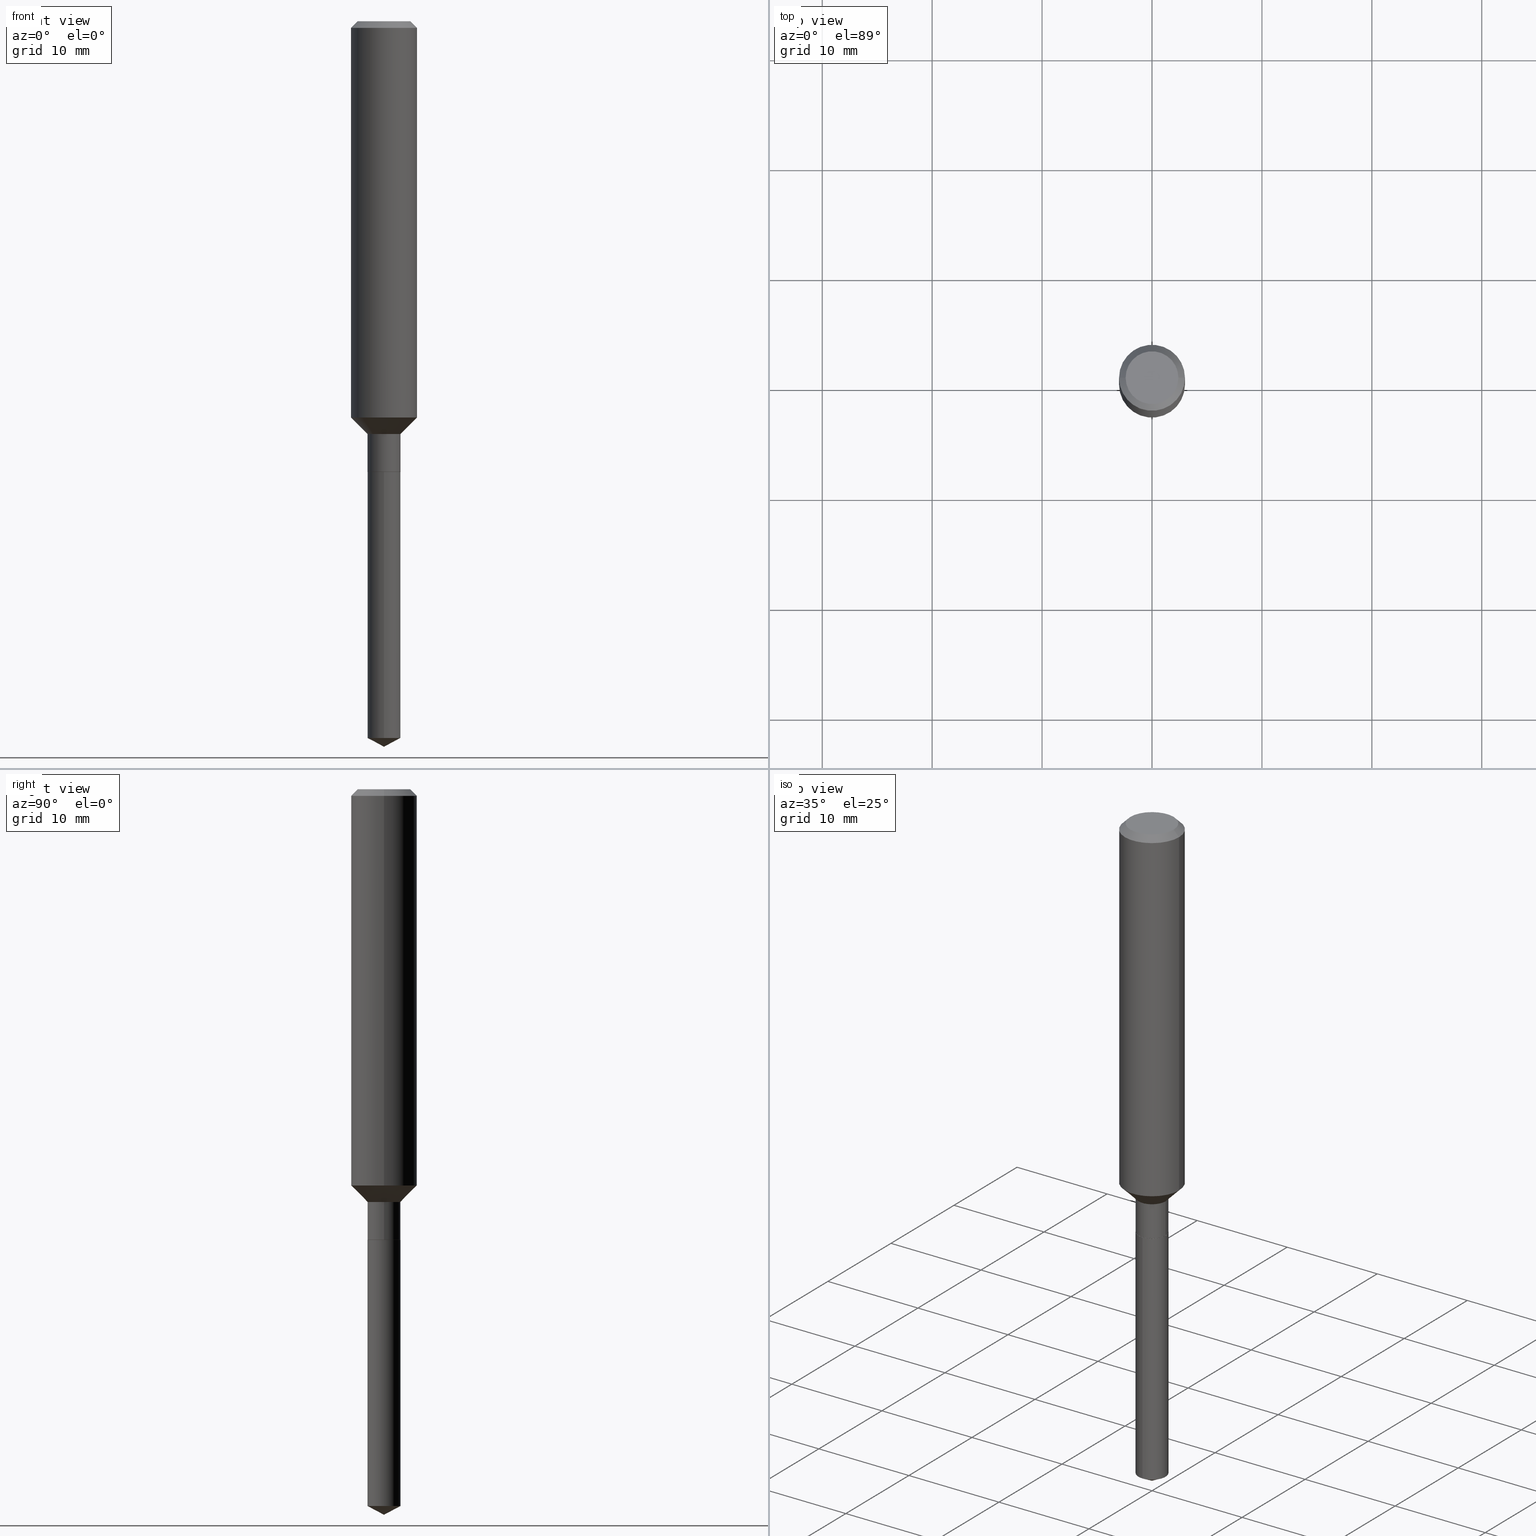
[diagram: canonical four-view strip — front | top / right | iso, engineering-drawing reading convention]
A machine part, canonical four-view strip (front | top / right | iso — engineering-drawing reading convention). The complete STEP part file that produces these views, byte-faithful:
ISO-10303-21;
HEADER;
FILE_DESCRIPTION (( 'STEP AP203' ),
    '1' );
FILE_NAME ('65160.STEP',
    '2024-04-24T20:45:48',
    ( '' ),
    ( '' ),
    'SwSTEP 2.0',
    'SolidWorks 2023',
    '' );
FILE_SCHEMA (( 'CONFIG_CONTROL_DESIGN' ));
ENDSEC;

DATA;
#1 = DIRECTION ( 'NONE',  ( 6.982962677686265922E-15, 1.000000000000000000, -3.499725534073182497E-15 ) ) ;
#2 = EDGE_LOOP ( 'NONE', ( #210, #271, #379, #392 ) ) ;
#3 = DIRECTION ( 'NONE',  ( -6.982962677686265922E-15, -1.000000000000000000, 4.626330217890370914E-15 ) ) ;
#4 = EDGE_LOOP ( 'NONE', ( #123, #307, #44, #301 ) ) ;
#5 = EDGE_CURVE ( 'NONE', #10, #429, #19, .T. ) ;
#6 = AXIS2_PLACEMENT_3D ( 'NONE', #293, #178, #486 ) ;
#7 = DIRECTION ( 'NONE',  ( 1.000000000000000000, -6.982962677686265922E-15, 0.000000000000000000 ) ) ;
#8 = ORIENTED_EDGE ( 'NONE', *, *, #366, .T. ) ;
#9 = CARTESIAN_POINT ( 'NONE',  ( 6.272038925202559547E-29, -8.970497442954319382E-15, -2.567002558060389461 ) ) ;
#10 = VERTEX_POINT ( 'NONE', #14 ) ;
#11 = DIRECTION ( 'NONE',  ( 1.000000000000000000, -6.982962677686265922E-15, 0.000000000000000000 ) ) ;
#12 = CARTESIAN_POINT ( 'NONE',  ( -0.1181000000000001354, -4.116133919220453348E-15, -1.419249999999999678 ) ) ;
#13 = AXIS2_PLACEMENT_3D ( 'NONE', #109, #185, #479 ) ;
#14 = CARTESIAN_POINT ( 'NONE',  ( -4.123439461173112196E-16, -0.05905000000000895644, -2.567002558060389461 ) ) ;
#15 = ADVANCED_FACE ( 'NONE', ( #169 ), #464, .T. ) ;
#16 = PERSON_AND_ORGANIZATION ( #471, #68 ) ;
#17 = ORIENTED_EDGE ( 'NONE', *, *, #366, .F. ) ;
#18 = PERSON_AND_ORGANIZATION_ROLE ( 'creator' ) ;
#19 = LINE ( 'NONE', #284, #180 ) ;
#20 = EDGE_CURVE ( 'NONE', #455, #10, #55, .T. ) ;
#21 = ORIENTED_EDGE ( 'NONE', *, *, #218, .F. ) ;
#22 = CIRCLE ( 'NONE', #13, 0.1180999999999999966 ) ;
#23 = DATE_AND_TIME ( #443, #297 ) ;
#24 = CARTESIAN_POINT ( 'NONE',  ( 4.195754854664020595E-16, 0.05904999999999435700, -1.614099999999999868 ) ) ;
#25 = DIRECTION ( 'NONE',  ( 1.000000000000000000, -6.982962677686258033E-15, 0.000000000000000000 ) ) ;
#26 = LINE ( 'NONE', #367, #334 ) ;
#27 = AXIS2_PLACEMENT_3D ( 'NONE', #274, #204, #431 ) ;
#28 = AXIS2_PLACEMENT_3D ( 'NONE', #131, #236, #472 ) ;
#29 = FACE_OUTER_BOUND ( 'NONE', #470, .T. ) ;
#30 = LINE ( 'NONE', #292, #344 ) ;
#31 = ADVANCED_FACE ( 'NONE', ( #311 ), #134, .T. ) ;
#32 = CARTESIAN_POINT ( 'NONE',  ( 3.947231200063428045E-29, -5.635600029026720279E-15, -1.614099999999999646 ) ) ;
#33 = ORIENTED_EDGE ( 'NONE', *, *, #167, .T. ) ;
#34 = AXIS2_PLACEMENT_3D ( 'NONE', #189, #419, #450 ) ;
#35 = FACE_OUTER_BOUND ( 'NONE', #309, .T. ) ;
#36 = ORIENTED_EDGE ( 'NONE', *, *, #20, .T. ) ;
#37 = LINE ( 'NONE', #340, #304 ) ;
#38 = VERTEX_POINT ( 'NONE', #12 ) ;
#39 = EDGE_CURVE ( 'NONE', #463, #303, #237, .T. ) ;
#40 = DIRECTION ( 'NONE',  ( -2.438088387897960049E-29, 3.491481338843145188E-15, 1.000000000000000000 ) ) ;
#41 = EDGE_LOOP ( 'NONE', ( #420, #245 ) ) ;
#42 = CIRCLE ( 'NONE', #73, 0.05904999999999998445 ) ;
#43 = DIRECTION ( 'NONE',  ( 1.000000000000000000, -6.982962677686265922E-15, 0.000000000000000000 ) ) ;
#44 = ORIENTED_EDGE ( 'NONE', *, *, #5, .T. ) ;
#45 =( NAMED_UNIT ( * ) PLANE_ANGLE_UNIT ( ) SI_UNIT ( $, .RADIAN. ) );
#46 = DIRECTION ( 'NONE',  ( -2.445468806185136877E-29, 3.491481338843145188E-15, 1.000000000000000000 ) ) ;
#47 = CARTESIAN_POINT ( 'NONE',  ( 6.339347441040957476E-29, -9.093686827735757233E-15, -2.598399999999999821 ) ) ;
#48 = ADVANCED_FACE ( 'NONE', ( #49 ), #480, .T. ) ;
#49 = FACE_OUTER_BOUND ( 'NONE', #207, .T. ) ;
#50 = CALENDAR_DATE ( 2024, 24, 4 ) ;
#51 = AXIS2_PLACEMENT_3D ( 'NONE', #477, #110, #175 ) ;
#52 = VERTEX_POINT ( 'NONE', #426 ) ;
#53 = CIRCLE ( 'NONE', #34, 0.05904999999999998445 ) ;
#54 = CARTESIAN_POINT ( 'NONE',  ( -0.05854999999999998400, -5.216928030065070484E-15, -1.614099999999999646 ) ) ;
#55 = LINE ( 'NONE', #320, #321 ) ;
#56 = CC_DESIGN_DATE_AND_TIME_ASSIGNMENT ( #291, #251, ( #78 ) ) ;
#57 = CARTESIAN_POINT ( 'NONE',  ( 4.716267017698007905E-46, -6.733579360998555036E-32, -1.928573779297252010E-17 ) ) ;
#58 = ORIENTED_EDGE ( 'NONE', *, *, #444, .F. ) ;
#59 = CARTESIAN_POINT ( 'NONE',  ( 3.946008465660335244E-29, -5.633854288357298776E-15, -1.613599999999999701 ) ) ;
#60 = VECTOR ( 'NONE', #315, 39.37007874015748854 ) ;
#61 = CONICAL_SURFACE ( 'NONE', #441, 0.05854999999999998400, 0.7853981633974482790 ) ;
#62 = CARTESIAN_POINT ( 'NONE',  ( 0.09447999999999998066, -7.704367267948738690E-16, -1.928573779296752193E-17 ) ) ;
#63 = CARTESIAN_POINT ( 'NONE',  ( 0.1181000000000000660, -8.246878922347485584E-16, 5.758764772215003944E-30 ) ) ;
#64 = EDGE_CURVE ( 'NONE', #415, #52, #155, .T. ) ;
#65 = DIRECTION ( 'NONE',  ( 1.000000000000000000, -6.982962677686267499E-15, 4.876176775795935793E-29 ) ) ;
#66 = VECTOR ( 'NONE', #483, 39.37007874015748143 ) ;
#67 = DIRECTION ( 'NONE',  ( 0.7071067811865474617, -2.468850131082256666E-15, 0.7071067811865474617 ) ) ;
#68 = ORGANIZATION ( 'UNSPECIFIED', 'UNSPECIFIED', '' ) ;
#69 = EDGE_CURVE ( 'NONE', #429, #120, #42, .T. ) ;
#70 = DIRECTION ( 'NONE',  ( 0.7071067811865491270, -2.468850131082274021E-15, 0.7071067811865459074 ) ) ;
#71 = CARTESIAN_POINT ( 'NONE',  ( 3.947231200063428045E-29, -5.635600029026720279E-15, -1.614099999999999646 ) ) ;
#72 = ORIENTED_EDGE ( 'NONE', *, *, #361, .T. ) ;
#73 = AXIS2_PLACEMENT_3D ( 'NONE', #241, #352, #317 ) ;
#74 = AXIS2_PLACEMENT_3D ( 'NONE', #229, #153, #1 ) ;
#75 = CYLINDRICAL_SURFACE ( 'NONE', #203, 0.05904999999999998445 ) ;
#76 = EDGE_CURVE ( 'NONE', #455, #299, #202, .T. ) ;
#77 = ORIENTED_EDGE ( 'NONE', *, *, #182, .T. ) ;
#78 = SECURITY_CLASSIFICATION ( '', '', #97 ) ;
#79 = MANIFOLD_SOLID_BREP ( 'Body-Move/Copy2[1]', #100 ) ;
#80 = DIRECTION ( 'NONE',  ( -0.7071067811865491270, 7.493145998870360471E-15, 0.7071067811865459074 ) ) ;
#81 = ORIENTED_EDGE ( 'NONE', *, *, #354, .F. ) ;
#82 = DIRECTION ( 'NONE',  ( 1.000000000000000000, -6.982962677686270655E-15, 0.000000000000000000 ) ) ;
#83 = ORIENTED_EDGE ( 'NONE', *, *, #460, .T. ) ;
#84 = CLOSED_SHELL ( 'NONE', ( #468, #347, #15, #145, #88, #160, #258, #31, #282, #197, #339, #375 ) ) ;
#85 = CONICAL_SURFACE ( 'NONE', #358, 0.05854999999999998400, 0.7853981633974482790 ) ;
#86 = DIRECTION ( 'NONE',  ( 1.000000000000000000, -6.982962677686266711E-15, 0.000000000000000000 ) ) ;
#87 = DIRECTION ( 'NONE',  ( -2.445468806185136597E-29, 3.491481338843145583E-15, 1.000000000000000000 ) ) ;
#88 = ADVANCED_FACE ( 'NONE', ( #93 ), #360, .T. ) ;
#89 = DIRECTION ( 'NONE',  ( 1.000000000000000000, -6.982962677686267499E-15, 4.875432709231658792E-29 ) ) ;
#90 = DIRECTION ( 'NONE',  ( 1.000000000000000000, -6.982962677686265922E-15, 0.000000000000000000 ) ) ;
#91 = DIRECTION ( 'NONE',  ( -2.445468806185136597E-29, 3.491481338843145583E-15, 1.000000000000000000 ) ) ;
#92 = EDGE_LOOP ( 'NONE', ( #154, #116, #149, #385 ) ) ;
#93 = FACE_OUTER_BOUND ( 'NONE', #267, .T. ) ;
#94 = CIRCLE ( 'NONE', #487, 0.1180999999999999966 ) ;
#95 = EDGE_CURVE ( 'NONE', #346, #303, #448, .T. ) ;
#96 = ORIENTED_EDGE ( 'NONE', *, *, #76, .F. ) ;
#97 = SECURITY_CLASSIFICATION_LEVEL ( 'unclassified' ) ;
#98 = CYLINDRICAL_SURFACE ( 'NONE', #474, 0.05904999999999998445 ) ;
#99 = LINE ( 'NONE', #359, #411 ) ;
#100 = CLOSED_SHELL ( 'NONE', ( #296, #266, #48, #233, #332 ) ) ;
#101 = CIRCLE ( 'NONE', #481, 0.1181000000000001354 ) ;
#102 = VERTEX_POINT ( 'NONE', #62 ) ;
#103 = CC_DESIGN_APPROVAL ( #437, ( #125 ) ) ;
#104 = EDGE_CURVE ( 'NONE', #102, #129, #99, .T. ) ;
#105 = DATE_AND_TIME ( #249, #416 ) ;
#106 = CC_DESIGN_APPROVAL ( #240, ( #78 ) ) ;
#107 = DIRECTION ( 'NONE',  ( 1.000000000000000000, -6.982962677686270655E-15, 0.000000000000000000 ) ) ;
#108 = COORDINATED_UNIVERSAL_TIME_OFFSET ( 5, 0, .BEHIND. ) ;
#109 = CARTESIAN_POINT ( 'NONE',  ( 5.776197320209328408E-31, -8.246878922347560526E-17, -0.02362000000000014435 ) ) ;
#110 = DIRECTION ( 'NONE',  ( -2.445468806185136597E-29, 3.491481338843145583E-15, 1.000000000000000000 ) ) ;
#111 = CARTESIAN_POINT ( 'NONE',  ( 5.776197320209328408E-31, -8.246878922347560526E-17, -0.02362000000000014435 ) ) ;
#112 = CC_DESIGN_APPROVAL ( #476, ( #316 ) ) ;
#113 = FACE_OUTER_BOUND ( 'NONE', #92, .T. ) ;
#114 = ORIENTED_EDGE ( 'NONE', *, *, #453, .T. ) ;
#115 = DIRECTION ( 'NONE',  ( -1.000000000000000000, 6.982962677686266711E-15, 0.000000000000000000 ) ) ;
#116 = ORIENTED_EDGE ( 'NONE', *, *, #224, .T. ) ;
#117 = VECTOR ( 'NONE', #67, 39.37007874015748854 ) ;
#118 = AXIS2_PLACEMENT_3D ( 'NONE', #157, #122, #82 ) ;
#119 = FACE_OUTER_BOUND ( 'NONE', #41, .T. ) ;
#120 = VERTEX_POINT ( 'NONE', #24 ) ;
#121 = LOCAL_TIME ( 16, 45, 48.00000000000000000, #170 ) ;
#122 = DIRECTION ( 'NONE',  ( -2.445468806185136597E-29, 3.491481338843145583E-15, 1.000000000000000000 ) ) ;
#123 = ORIENTED_EDGE ( 'NONE', *, *, #224, .F. ) ;
#124 = ORIENTED_EDGE ( 'NONE', *, *, #247, .F. ) ;
#125 = PRODUCT_DEFINITION ( 'UNKNOWN', '', #316, #208 ) ;
#126 = AXIS2_PLACEMENT_3D ( 'NONE', #135, #200, #279 ) ;
#127 = CIRCLE ( 'NONE', #351, 0.05904999999999999138 ) ;
#128 = DIRECTION ( 'NONE',  ( 0.000000000000000000, 0.000000000000000000, 1.000000000000000000 ) ) ;
#129 = VERTEX_POINT ( 'NONE', #436 ) ;
#130 = ORIENTED_EDGE ( 'NONE', *, *, #95, .T. ) ;
#131 = CARTESIAN_POINT ( 'NONE',  ( 3.615136536183486392E-29, -5.161456863211820978E-15, -1.478299999999999725 ) ) ;
#132 = DIRECTION ( 'NONE',  ( 1.000000000000000000, -6.982962677686266711E-15, 4.876176775795936353E-29 ) ) ;
#133 = CARTESIAN_POINT ( 'NONE',  ( 0.000000000000000000, 0.000000000000000000, 0.000000000000000000 ) ) ;
#134 = CYLINDRICAL_SURFACE ( 'NONE', #173, 0.1181000000000000660 ) ;
#135 = CARTESIAN_POINT ( 'NONE',  ( 0.000000000000000000, 0.000000000000000000, 0.000000000000000000 ) ) ;
#136 = APPLICATION_CONTEXT ( 'configuration controlled 3d designs of mechanical parts and assemblies' ) ;
#137 = DIRECTION ( 'NONE',  ( -2.445468806185136877E-29, 3.491481338843145188E-15, 1.000000000000000000 ) ) ;
#138 = EDGE_CURVE ( 'NONE', #38, #343, #26, .T. ) ;
#139 = FACE_OUTER_BOUND ( 'NONE', #4, .T. ) ;
#140 = VECTOR ( 'NONE', #70, 39.37007874015748143 ) ;
#141 =( GEOMETRIC_REPRESENTATION_CONTEXT ( 3 ) GLOBAL_UNCERTAINTY_ASSIGNED_CONTEXT ( ( #353 ) ) GLOBAL_UNIT_ASSIGNED_CONTEXT ( ( #425, #45, #165 ) ) REPRESENTATION_CONTEXT ( 'NONE', 'WORKASPACE' ) );
#142 = APPROVAL_DATE_TIME ( #23, #240 ) ;
#143 = FACE_OUTER_BOUND ( 'NONE', #410, .T. ) ;
#144 = SHAPE_DEFINITION_REPRESENTATION ( #242, #428 ) ;
#145 = ADVANCED_FACE ( 'NONE', ( #29 ), #227, .T. ) ;
#146 = CARTESIAN_POINT ( 'NONE',  ( 2.358133508849003952E-46, -3.366789680499277518E-32, -9.642868896486260050E-18 ) ) ;
#147 = CARTESIAN_POINT ( 'NONE',  ( 4.195754854663784430E-16, 0.05904999999999435006, -1.614099999999999868 ) ) ;
#148 = DIRECTION ( 'NONE',  ( 2.445468806185136597E-29, -3.491481338843145583E-15, -1.000000000000000000 ) ) ;
#149 = ORIENTED_EDGE ( 'NONE', *, *, #69, .F. ) ;
#150 = DIRECTION ( 'NONE',  ( 1.000000000000000000, -6.982962677686258033E-15, 0.000000000000000000 ) ) ;
#151 = ORIENTED_EDGE ( 'NONE', *, *, #275, .T. ) ;
#152 = EDGE_CURVE ( 'NONE', #129, #343, #22, .T. ) ;
#153 = DIRECTION ( 'NONE',  ( 2.439711915425245520E-29, -3.499725534073182497E-15, -1.000000000000000000 ) ) ;
#154 = ORIENTED_EDGE ( 'NONE', *, *, #218, .T. ) ;
#155 = CIRCLE ( 'NONE', #164, 0.05854999999999998400 ) ;
#156 = AXIS2_PLACEMENT_3D ( 'NONE', #192, #373, #150 ) ;
#157 = CARTESIAN_POINT ( 'NONE',  ( 3.946008465660335244E-29, -5.633854288357298776E-15, -1.613599999999999701 ) ) ;
#158 = EDGE_LOOP ( 'NONE', ( #83, #190 ) ) ;
#159 = DATE_TIME_ROLE ( 'creation_date' ) ;
#160 = ADVANCED_FACE ( 'NONE', ( #403 ), #217, .T. ) ;
#161 = ORIENTED_EDGE ( 'NONE', *, *, #138, .F. ) ;
#162 = LENGTH_MEASURE_WITH_UNIT ( LENGTH_MEASURE( 0.02539999999999999897 ), #382 );
#163 = ORIENTED_EDGE ( 'NONE', *, *, #104, .T. ) ;
#164 = AXIS2_PLACEMENT_3D ( 'NONE', #281, #435, #90 ) ;
#165 =( NAMED_UNIT ( * ) SI_UNIT ( $, .STERADIAN. ) SOLID_ANGLE_UNIT ( ) );
#166 = CARTESIAN_POINT ( 'NONE',  ( 6.358094798996886766E-29, -9.067072916694150087E-15, -2.598399999999999821 ) ) ;
#167 = EDGE_CURVE ( 'NONE', #336, #346, #365, .T. ) ;
#168 = CALENDAR_DATE ( 2024, 24, 4 ) ;
#169 = FACE_OUTER_BOUND ( 'NONE', #369, .T. ) ;
#170 = COORDINATED_UNIVERSAL_TIME_OFFSET ( 5, 0, .BEHIND. ) ;
#171 = ORIENTED_EDGE ( 'NONE', *, *, #152, .F. ) ;
#172 = COORDINATED_UNIVERSAL_TIME_OFFSET ( 5, 0, .BEHIND. ) ;
#173 = AXIS2_PLACEMENT_3D ( 'NONE', #277, #87, #132 ) ;
#174 = ORIENTED_EDGE ( 'NONE', *, *, #388, .T. ) ;
#175 = DIRECTION ( 'NONE',  ( 1.000000000000000000, -6.982962677686258033E-15, 0.000000000000000000 ) ) ;
#176 = CC_DESIGN_PERSON_AND_ORGANIZATION_ASSIGNMENT ( #273, #356, ( #467 ) ) ;
#177 = PERSON_AND_ORGANIZATION ( #471, #68 ) ;
#178 = DIRECTION ( 'NONE',  ( -2.439711915425245800E-29, 3.499725534073182891E-15, 1.000000000000000000 ) ) ;
#179 = CARTESIAN_POINT ( 'NONE',  ( 3.947231200063428045E-29, -5.635600029026720279E-15, -1.614099999999999646 ) ) ;
#180 = VECTOR ( 'NONE', #475, 39.37007874015748143 ) ;
#181 = AXIS2_PLACEMENT_3D ( 'NONE', #59, #289, #107 ) ;
#182 = EDGE_CURVE ( 'NONE', #394, #38, #286, .T. ) ;
#183 = APPROVAL_PERSON_ORGANIZATION ( #276, #437, #270 ) ;
#184 = PERSON_AND_ORGANIZATION_ROLE ( 'classification_officer' ) ;
#185 = DIRECTION ( 'NONE',  ( -2.445468806185136597E-29, 3.491481338843145583E-15, 1.000000000000000000 ) ) ;
#186 = DIRECTION ( 'NONE',  ( 2.438088387897960049E-29, -3.491481338843145188E-15, -1.000000000000000000 ) ) ;
#187 = CARTESIAN_POINT ( 'NONE',  ( 4.195754854664017144E-16, 0.05904999999999101939, -2.567002558060389461 ) ) ;
#188 = ORIENTED_EDGE ( 'NONE', *, *, #95, .F. ) ;
#189 = CARTESIAN_POINT ( 'NONE',  ( 3.947231200063428045E-29, -5.635600029026720279E-15, -1.614099999999999646 ) ) ;
#190 = ORIENTED_EDGE ( 'NONE', *, *, #444, .T. ) ;
#191 = EDGE_CURVE ( 'NONE', #415, #463, #30, .T. ) ;
#192 = CARTESIAN_POINT ( 'NONE',  ( 3.615136536183486392E-29, -5.161456863211820978E-15, -1.478299999999999725 ) ) ;
#193 = ORIENTED_EDGE ( 'NONE', *, *, #252, .F. ) ;
#194 = CARTESIAN_POINT ( 'NONE',  ( 3.947231200063428045E-29, -5.635600029026720279E-15, -1.614099999999999646 ) ) ;
#195 = ORIENTED_EDGE ( 'NONE', *, *, #453, .F. ) ;
#196 = CIRCLE ( 'NONE', #181, 0.05904999999999988036 ) ;
#197 = ADVANCED_FACE ( 'NONE', ( #407 ), #399, .F. ) ;
#198 = CARTESIAN_POINT ( 'NONE',  ( 0.1181000000000001354, -5.779972782387881386E-15, -1.419249999999999678 ) ) ;
#199 = ORIENTED_EDGE ( 'NONE', *, *, #421, .F. ) ;
#200 = DIRECTION ( 'NONE',  ( -2.445468806185136597E-29, 3.491481338843145583E-15, 1.000000000000000000 ) ) ;
#201 = DIRECTION ( 'NONE',  ( -2.445468806185136597E-29, 3.491481338843145583E-15, 1.000000000000000000 ) ) ;
#202 = LINE ( 'NONE', #166, #60 ) ;
#203 = AXIS2_PLACEMENT_3D ( 'NONE', #32, #261, #3 ) ;
#204 = DIRECTION ( 'NONE',  ( -2.439711915425245800E-29, 3.499725534073182891E-15, 1.000000000000000000 ) ) ;
#205 = EDGE_CURVE ( 'NONE', #52, #336, #401, .T. ) ;
#206 = DIRECTION ( 'NONE',  ( -2.445468806185136597E-29, 3.491481338843145583E-15, 1.000000000000000000 ) ) ;
#207 = EDGE_LOOP ( 'NONE', ( #96, #36, #372 ) ) ;
#208 = DESIGN_CONTEXT ( 'detailed design', #136, 'design' ) ;
#209 = DIRECTION ( 'NONE',  ( 1.000000000000000000, -6.982962677686267499E-15, 4.875432709231658792E-29 ) ) ;
#210 = ORIENTED_EDGE ( 'NONE', *, *, #191, .F. ) ;
#211 = PRODUCT_RELATED_PRODUCT_CATEGORY ( 'detail', '', ( #467 ) ) ;
#212 = PERSON_AND_ORGANIZATION_ROLE ( 'design_supplier' ) ;
#213 = VECTOR ( 'NONE', #409, 39.37007874015748143 ) ;
#214 = DIRECTION ( 'NONE',  ( -2.445468806185136597E-29, 3.491481338843145583E-15, 1.000000000000000000 ) ) ;
#215 = DIRECTION ( 'NONE',  ( -1.000000000000000000, 6.982962677686265922E-15, -4.876176775795935793E-29 ) ) ;
#216 = ORIENTED_EDGE ( 'NONE', *, *, #252, .T. ) ;
#217 = CYLINDRICAL_SURFACE ( 'NONE', #440, 0.05904999999999985955 ) ;
#218 = EDGE_CURVE ( 'NONE', #10, #299, #220, .T. ) ;
#219 = DIRECTION ( 'NONE',  ( 1.000000000000000000, -6.982962677686267499E-15, 4.876176775795935793E-29 ) ) ;
#220 = CIRCLE ( 'NONE', #6, 0.05904999999999999138 ) ;
#221 = DIRECTION ( 'NONE',  ( -2.445468806185136597E-29, 3.491481338843145583E-15, 1.000000000000000000 ) ) ;
#222 = CARTESIAN_POINT ( 'NONE',  ( -0.1180999999999999966, 7.422191030112725094E-16, -0.02362000000000014435 ) ) ;
#223 = VERTEX_POINT ( 'NONE', #447 ) ;
#224 = EDGE_CURVE ( 'NONE', #299, #120, #256, .T. ) ;
#225 = FACE_OUTER_BOUND ( 'NONE', #418, .T. ) ;
#226 = ORIENTED_EDGE ( 'NONE', *, *, #361, .F. ) ;
#227 = CONICAL_SURFACE ( 'NONE', #51, 0.05904999999999984567, 0.7853981633974506105 ) ;
#228 = CIRCLE ( 'NONE', #328, 0.05854999999999998400 ) ;
#229 = CARTESIAN_POINT ( 'NONE',  ( 3.947231200063428045E-29, -5.635600029026720279E-15, -1.614099999999999646 ) ) ;
#230 = ORIENTED_EDGE ( 'NONE', *, *, #152, .T. ) ;
#231 = LINE ( 'NONE', #222, #213 ) ;
#232 = ORIENTED_EDGE ( 'NONE', *, *, #182, .F. ) ;
#233 = ADVANCED_FACE ( 'NONE', ( #139 ), #98, .T. ) ;
#234 = DIRECTION ( 'NONE',  ( -2.445468806185136597E-29, 3.491481338843145583E-15, 1.000000000000000000 ) ) ;
#235 = ORIENTED_EDGE ( 'NONE', *, *, #138, .T. ) ;
#236 = DIRECTION ( 'NONE',  ( -2.445468806185136597E-29, 3.491481338843145583E-15, 1.000000000000000000 ) ) ;
#237 = LINE ( 'NONE', #383, #363 ) ;
#238 = CARTESIAN_POINT ( 'NONE',  ( 4.716267017698007905E-46, -6.733579360998555036E-32, -1.928573779297252010E-17 ) ) ;
#239 = ORIENTED_EDGE ( 'NONE', *, *, #460, .F. ) ;
#240 = APPROVAL ( #438, 'UNSPECIFIED' ) ;
#241 = CARTESIAN_POINT ( 'NONE',  ( 3.947231200063428045E-29, -5.635600029026720279E-15, -1.614099999999999646 ) ) ;
#242 = PRODUCT_DEFINITION_SHAPE ( 'NONE', 'NONE',  #125 ) ;
#243 = AXIS2_PLACEMENT_3D ( 'NONE', #454, #40, #265 ) ;
#244 = APPLICATION_PROTOCOL_DEFINITION ( 'international standard', 'config_control_design', 1994, #136 ) ;
#245 = ORIENTED_EDGE ( 'NONE', *, *, #64, .F. ) ;
#246 = ORIENTED_EDGE ( 'NONE', *, *, #421, .T. ) ;
#247 = EDGE_CURVE ( 'NONE', #336, #463, #196, .T. ) ;
#248 = DIRECTION ( 'NONE',  ( -2.439711915425245800E-29, 3.499725534073182891E-15, 1.000000000000000000 ) ) ;
#249 = CALENDAR_DATE ( 2024, 24, 4 ) ;
#250 = DIRECTION ( 'NONE',  ( 0.7071067811865459074, -7.319954787623251312E-15, -0.7071067811865492381 ) ) ;
#251 = DATE_TIME_ROLE ( 'classification_date' ) ;
#252 = EDGE_CURVE ( 'NONE', #394, #129, #253, .T. ) ;
#253 = LINE ( 'NONE', #63, #465 ) ;
#254 = CARTESIAN_POINT ( 'NONE',  ( 0.000000000000000000, 0.000000000000000000, 0.000000000000000000 ) ) ;
#255 = PERSON_AND_ORGANIZATION ( #471, #68 ) ;
#256 = LINE ( 'NONE', #147, #66 ) ;
#257 = CARTESIAN_POINT ( 'NONE',  ( 0.05904999999999988036, -6.046198234474672118E-15, -1.613599999999999701 ) ) ;
#258 = ADVANCED_FACE ( 'NONE', ( #143 ), #313, .T. ) ;
#259 = CARTESIAN_POINT ( 'NONE',  ( -0.05904999999999984567, -4.978080090318222356E-15, -1.478299999999999725 ) ) ;
#260 = ORIENTED_EDGE ( 'NONE', *, *, #205, .F. ) ;
#261 = DIRECTION ( 'NONE',  ( -2.439711915425245800E-29, 3.499725534073182891E-15, 1.000000000000000000 ) ) ;
#262 = ORIENTED_EDGE ( 'NONE', *, *, #247, .T. ) ;
#263 = CIRCLE ( 'NONE', #118, 0.05904999999999988036 ) ;
#264 = AXIS2_PLACEMENT_3D ( 'NONE', #133, #128, #310 ) ;
#265 = DIRECTION ( 'NONE',  ( 1.000000000000000000, -6.982962677686265922E-15, 4.876176775795935793E-29 ) ) ;
#266 = ADVANCED_FACE ( 'NONE', ( #225 ), #272, .T. ) ;
#267 = EDGE_LOOP ( 'NONE', ( #262, #348, #188, #452 ) ) ;
#268 = PLANE ( 'NONE',  #243 ) ;
#269 = ORIENTED_EDGE ( 'NONE', *, *, #354, .T. ) ;
#270 = APPROVAL_ROLE ( '' ) ;
#271 = ORIENTED_EDGE ( 'NONE', *, *, #64, .T. ) ;
#272 = CONICAL_SURFACE ( 'NONE', #457, 74.04434902938294272, 1.082104136236483161 ) ;
#273 = PERSON_AND_ORGANIZATION ( #471, #68 ) ;
#274 = CARTESIAN_POINT ( 'NONE',  ( -8.970301057517586129E-28, 1.287040899731859541E-13, 36.77167874015748339 ) ) ;
#275 = EDGE_CURVE ( 'NONE', #346, #394, #370, .T. ) ;
#276 = PERSON_AND_ORGANIZATION ( #471, #68 ) ;
#277 = CARTESIAN_POINT ( 'NONE',  ( 0.000000000000000000, 0.000000000000000000, 0.000000000000000000 ) ) ;
#278 = CARTESIAN_POINT ( 'NONE',  ( -0.05904999999999988036, -4.978080090318222356E-15, -1.613599999999999701 ) ) ;
#279 = DIRECTION ( 'NONE',  ( 1.000000000000000000, -6.982962677686266711E-15, 4.876176775795936353E-29 ) ) ;
#280 = DATE_AND_TIME ( #168, #121 ) ;
#281 = CARTESIAN_POINT ( 'NONE',  ( 3.947231200063428045E-29, -5.635600029026720279E-15, -1.614099999999999646 ) ) ;
#282 = ADVANCED_FACE ( 'NONE', ( #413 ), #449, .T. ) ;
#283 = COORDINATED_UNIVERSAL_TIME_OFFSET ( 5, 0, .BEHIND. ) ;
#284 = CARTESIAN_POINT ( 'NONE',  ( -4.123439461173343924E-16, -0.05905000000000561883, -1.614099999999999424 ) ) ;
#285 = DIRECTION ( 'NONE',  ( 1.000000000000000000, -6.982962677686265133E-15, 0.000000000000000000 ) ) ;
#286 = CIRCLE ( 'NONE', #350, 0.1181000000000001354 ) ;
#287 = APPROVAL_STATUS ( 'not_yet_approved' ) ;
#288 = AXIS2_PLACEMENT_3D ( 'NONE', #111, #337, #335 ) ;
#289 = DIRECTION ( 'NONE',  ( -2.445468806185136597E-29, 3.491481338843145583E-15, 1.000000000000000000 ) ) ;
#290 = APPROVAL_PERSON_ORGANIZATION ( #422, #476, #323 ) ;
#291 = DATE_AND_TIME ( #406, #434 ) ;
#292 = CARTESIAN_POINT ( 'NONE',  ( -0.05854999999999998400, -5.219577257239181685E-15, -1.614099999999999646 ) ) ;
#293 = CARTESIAN_POINT ( 'NONE',  ( 6.272038925202559547E-29, -8.970497442954319382E-15, -2.567002558060389461 ) ) ;
#294 = DIRECTION ( 'NONE',  ( -6.982962677686265922E-15, -1.000000000000000000, 3.541896320645589268E-15 ) ) ;
#295 = CIRCLE ( 'NONE', #390, 0.09447999999999998066 ) ;
#296 = ADVANCED_FACE ( 'NONE', ( #113 ), #75, .T. ) ;
#297 = LOCAL_TIME ( 16, 45, 48.00000000000000000, #283 ) ;
#298 = DIRECTION ( 'NONE',  ( -2.445468806185136597E-29, 3.491481338843145583E-15, 1.000000000000000000 ) ) ;
#299 = VERTEX_POINT ( 'NONE', #187 ) ;
#300 = DIRECTION ( 'NONE',  ( -2.439711915425245800E-29, 3.499725534073182891E-15, 1.000000000000000000 ) ) ;
#301 = ORIENTED_EDGE ( 'NONE', *, *, #312, .F. ) ;
#302 = CARTESIAN_POINT ( 'NONE',  ( -0.1180999999999999966, -1.679725868755624910E-15, -0.02362000000000014435 ) ) ;
#303 = VERTEX_POINT ( 'NONE', #259 ) ;
#304 = VECTOR ( 'NONE', #80, 39.37007874015748143 ) ;
#305 = APPLICATION_CONTEXT ( 'configuration controlled 3d designs of mechanical parts and assemblies' ) ;
#306 = DIRECTION ( 'NONE',  ( 1.000000000000000000, -6.982962677686265133E-15, 0.000000000000000000 ) ) ;
#307 = ORIENTED_EDGE ( 'NONE', *, *, #397, .T. ) ;
#308 = APPLICATION_PROTOCOL_DEFINITION ( 'international standard', 'config_control_design', 1994, #305 ) ;
#309 = EDGE_LOOP ( 'NONE', ( #374, #357 ) ) ;
#310 = DIRECTION ( 'NONE',  ( 1.000000000000000000, 0.000000000000000000, 0.000000000000000000 ) ) ;
#311 = FACE_OUTER_BOUND ( 'NONE', #466, .T. ) ;
#312 = EDGE_CURVE ( 'NONE', #120, #429, #53, .T. ) ;
#313 = CONICAL_SURFACE ( 'NONE', #156, 0.05904999999999984567, 0.7853981633974506105 ) ;
#314 = LOCAL_TIME ( 16, 45, 48.00000000000000000, #386 ) ;
#315 = DIRECTION ( 'NONE',  ( 6.273719981627753455E-15, 0.8829475928589278766, 0.4694715627858886409 ) ) ;
#316 = PRODUCT_DEFINITION_FORMATION_WITH_SPECIFIED_SOURCE ( 'ANY', '', #467, .NOT_KNOWN. ) ;
#317 = DIRECTION ( 'NONE',  ( -6.982962677686265922E-15, -1.000000000000000000, 4.626330217890370914E-15 ) ) ;
#318 = CC_DESIGN_PERSON_AND_ORGANIZATION_ASSIGNMENT ( #255, #212, ( #316 ) ) ;
#319 = DATE_AND_TIME ( #50, #314 ) ;
#320 = CARTESIAN_POINT ( 'NONE',  ( 6.339347441040957476E-29, -9.093686827735757233E-15, -2.598399999999999821 ) ) ;
#321 = VECTOR ( 'NONE', #473, 39.37007874015748854 ) ;
#322 = ORIENTED_EDGE ( 'NONE', *, *, #275, .F. ) ;
#323 = APPROVAL_ROLE ( '' ) ;
#324 = CARTESIAN_POINT ( 'NONE',  ( 0.05904999999999985955, -4.123439461173730959E-16, 2.879382386107493214E-30 ) ) ;
#325 = CARTESIAN_POINT ( 'NONE',  ( 0.000000000000000000, 0.000000000000000000, 0.000000000000000000 ) ) ;
#326 = CC_DESIGN_PERSON_AND_ORGANIZATION_ASSIGNMENT ( #330, #184, ( #78 ) ) ;
#327 = AXIS2_PLACEMENT_3D ( 'NONE', #146, #186, #215 ) ;
#328 = AXIS2_PLACEMENT_3D ( 'NONE', #71, #234, #43 ) ;
#329 = DIRECTION ( 'NONE',  ( -2.445468806185136877E-29, 3.491481338843145188E-15, 1.000000000000000000 ) ) ;
#330 = PERSON_AND_ORGANIZATION ( #471, #68 ) ;
#331 = DIRECTION ( 'NONE',  ( -0.7071067811865474617, 7.493145998870352582E-15, 0.7071067811865474617 ) ) ;
#332 = ADVANCED_FACE ( 'NONE', ( #35 ), #488, .F. ) ;
#333 = CARTESIAN_POINT ( 'NONE',  ( 3.615136536183486392E-29, -5.161456863211820978E-15, -1.478299999999999725 ) ) ;
#334 = VECTOR ( 'NONE', #485, 39.37007874015748143 ) ;
#335 = DIRECTION ( 'NONE',  ( -1.000000000000000000, 6.982962677686266711E-15, 0.000000000000000000 ) ) ;
#336 = VERTEX_POINT ( 'NONE', #257 ) ;
#337 = DIRECTION ( 'NONE',  ( 2.445468806185136597E-29, -3.491481338843145583E-15, -1.000000000000000000 ) ) ;
#338 = EDGE_LOOP ( 'NONE', ( #355, #239, #72, #114 ) ) ;
#339 = ADVANCED_FACE ( 'NONE', ( #119 ), #268, .F. ) ;
#340 = CARTESIAN_POINT ( 'NONE',  ( -0.05904999999999984567, -4.741881377745482273E-15, -1.478299999999999725 ) ) ;
#341 = ORIENTED_EDGE ( 'NONE', *, *, #20, .F. ) ;
#342 = DIRECTION ( 'NONE',  ( -2.445468806185136597E-29, 3.491481338843145583E-15, 1.000000000000000000 ) ) ;
#343 = VERTEX_POINT ( 'NONE', #302 ) ;
#344 = VECTOR ( 'NONE', #331, 39.37007874015748854 ) ;
#345 = CARTESIAN_POINT ( 'NONE',  ( 0.05904999999999984567, -5.573800809329193531E-15, -1.478299999999999725 ) ) ;
#346 = VERTEX_POINT ( 'NONE', #345 ) ;
#347 = ADVANCED_FACE ( 'NONE', ( #417 ), #414, .T. ) ;
#348 = ORIENTED_EDGE ( 'NONE', *, *, #39, .T. ) ;
#349 = ORIENTED_EDGE ( 'NONE', *, *, #191, .T. ) ;
#350 = AXIS2_PLACEMENT_3D ( 'NONE', #439, #445, #285 ) ;
#351 = AXIS2_PLACEMENT_3D ( 'NONE', #9, #408, #368 ) ;
#352 = DIRECTION ( 'NONE',  ( -2.439711915425245800E-29, 3.499725534073182891E-15, 1.000000000000000000 ) ) ;
#353 = UNCERTAINTY_MEASURE_WITH_UNIT (LENGTH_MEASURE( 1.000000000000000082E-05 ), #425, 'distance_accuracy_value', 'NONE');
#354 = EDGE_CURVE ( 'NONE', #303, #38, #37, .T. ) ;
#355 = ORIENTED_EDGE ( 'NONE', *, *, #104, .F. ) ;
#356 = PERSON_AND_ORGANIZATION_ROLE ( 'design_owner' ) ;
#357 = ORIENTED_EDGE ( 'NONE', *, *, #312, .T. ) ;
#358 = AXIS2_PLACEMENT_3D ( 'NONE', #430, #201, #11 ) ;
#359 = CARTESIAN_POINT ( 'NONE',  ( 0.1180999999999999966, -8.926936027602933910E-16, -0.02362000000000014435 ) ) ;
#360 = CYLINDRICAL_SURFACE ( 'NONE', #432, 0.05904999999999985955 ) ;
#361 = EDGE_CURVE ( 'NONE', #223, #343, #231, .T. ) ;
#362 = DIRECTION ( 'NONE',  ( -2.445468806185136597E-29, 3.491481338843145583E-15, 1.000000000000000000 ) ) ;
#363 = VECTOR ( 'NONE', #46, 39.37007874015748143 ) ;
#364 = AXIS2_PLACEMENT_3D ( 'NONE', #238, #206, #209 ) ;
#365 = LINE ( 'NONE', #324, #405 ) ;
#366 = EDGE_CURVE ( 'NONE', #38, #394, #101, .T. ) ;
#367 = CARTESIAN_POINT ( 'NONE',  ( -0.1181000000000000660, 8.391509709326787887E-16, -5.809262341591047287E-30 ) ) ;
#368 = DIRECTION ( 'NONE',  ( -6.982962677686265922E-15, -1.000000000000000000, 0.000000000000000000 ) ) ;
#369 = EDGE_LOOP ( 'NONE', ( #77, #235, #171, #193 ) ) ;
#370 = LINE ( 'NONE', #376, #140 ) ;
#371 = CIRCLE ( 'NONE', #364, 0.09447999999999998066 ) ;
#372 = ORIENTED_EDGE ( 'NONE', *, *, #397, .F. ) ;
#373 = DIRECTION ( 'NONE',  ( -2.445468806185136597E-29, 3.491481338843145583E-15, 1.000000000000000000 ) ) ;
#374 = ORIENTED_EDGE ( 'NONE', *, *, #69, .T. ) ;
#375 = ADVANCED_FACE ( 'NONE', ( #451 ), #61, .T. ) ;
#376 = CARTESIAN_POINT ( 'NONE',  ( 0.05904999999999984567, -5.573800809329193531E-15, -1.478299999999999725 ) ) ;
#377 = EDGE_LOOP ( 'NONE', ( #58, #163, #230, #226 ) ) ;
#378 = CARTESIAN_POINT ( 'NONE',  ( 5.776197320209328408E-31, -8.246878922347560526E-17, -0.02362000000000014435 ) ) ;
#379 = ORIENTED_EDGE ( 'NONE', *, *, #205, .T. ) ;
#380 = EDGE_CURVE ( 'NONE', #463, #336, #263, .T. ) ;
#381 = APPROVAL_PERSON_ORGANIZATION ( #177, #240, #398 ) ;
#382 =( LENGTH_UNIT ( ) NAMED_UNIT ( * ) SI_UNIT ( $, .METRE. ) );
#383 = CARTESIAN_POINT ( 'NONE',  ( -0.05904999999999985955, 4.195754854663381618E-16, -2.904631170795515236E-30 ) ) ;
#384 = CARTESIAN_POINT ( 'NONE',  ( -4.123439461173343924E-16, -0.05905000000000561883, -1.614099999999999424 ) ) ;
#385 = ORIENTED_EDGE ( 'NONE', *, *, #5, .F. ) ;
#386 = COORDINATED_UNIVERSAL_TIME_OFFSET ( 5, 0, .BEHIND. ) ;
#387 = ORIENTED_EDGE ( 'NONE', *, *, #380, .T. ) ;
#388 = EDGE_CURVE ( 'NONE', #52, #415, #228, .T. ) ;
#389 = AXIS2_PLACEMENT_3D ( 'NONE', #333, #362, #25 ) ;
#390 = AXIS2_PLACEMENT_3D ( 'NONE', #57, #91, #89 ) ;
#391 = APPROVAL_STATUS ( 'not_yet_approved' ) ;
#392 = ORIENTED_EDGE ( 'NONE', *, *, #380, .F. ) ;
#393 = FACE_OUTER_BOUND ( 'NONE', #461, .T. ) ;
#394 = VERTEX_POINT ( 'NONE', #198 ) ;
#395 = DIRECTION ( 'NONE',  ( -6.982962677686265922E-15, -1.000000000000000000, 4.626330217890370914E-15 ) ) ;
#396 = CIRCLE ( 'NONE', #28, 0.05904999999999984567 ) ;
#397 = EDGE_CURVE ( 'NONE', #299, #10, #127, .T. ) ;
#398 = APPROVAL_ROLE ( '' ) ;
#399 = PLANE ( 'NONE',  #327 ) ;
#400 = MANIFOLD_SOLID_BREP ( 'Body-Move/Copy2[2]', #84 ) ;
#401 = LINE ( 'NONE', #442, #117 ) ;
#402 = DIMENSIONAL_EXPONENTS ( 1.000000000000000000, 0.000000000000000000, 0.000000000000000000, 0.000000000000000000, 0.000000000000000000, 0.000000000000000000, 0.000000000000000000 ) ;
#403 = FACE_OUTER_BOUND ( 'NONE', #423, .T. ) ;
#404 = CC_DESIGN_PERSON_AND_ORGANIZATION_ASSIGNMENT ( #478, #484, ( #316 ) ) ;
#405 = VECTOR ( 'NONE', #137, 39.37007874015748143 ) ;
#406 = CALENDAR_DATE ( 2024, 24, 4 ) ;
#407 = FACE_OUTER_BOUND ( 'NONE', #158, .T. ) ;
#408 = DIRECTION ( 'NONE',  ( -2.439711915425245800E-29, 3.499725534073182891E-15, 1.000000000000000000 ) ) ;
#409 = DIRECTION ( 'NONE',  ( -0.7071067811865459074, 2.468850131082239706E-15, -0.7071067811865492381 ) ) ;
#410 = EDGE_LOOP ( 'NONE', ( #81, #246, #151, #17 ) ) ;
#411 = VECTOR ( 'NONE', #250, 39.37007874015748143 ) ;
#412 = CC_DESIGN_PERSON_AND_ORGANIZATION_ASSIGNMENT ( #16, #18, ( #125 ) ) ;
#413 = FACE_OUTER_BOUND ( 'NONE', #338, .T. ) ;
#414 = CONICAL_SURFACE ( 'NONE', #424, 0.1180999999999999966, 0.7853981633974459475 ) ;
#415 = VERTEX_POINT ( 'NONE', #54 ) ;
#416 = LOCAL_TIME ( 16, 45, 48.00000000000000000, #108 ) ;
#417 = FACE_OUTER_BOUND ( 'NONE', #377, .T. ) ;
#418 = EDGE_LOOP ( 'NONE', ( #341, #458, #21 ) ) ;
#419 = DIRECTION ( 'NONE',  ( -2.439711915425245800E-29, 3.499725534073182891E-15, 1.000000000000000000 ) ) ;
#420 = ORIENTED_EDGE ( 'NONE', *, *, #388, .F. ) ;
#421 = EDGE_CURVE ( 'NONE', #303, #346, #396, .T. ) ;
#422 = PERSON_AND_ORGANIZATION ( #471, #68 ) ;
#423 = EDGE_LOOP ( 'NONE', ( #489, #387, #33, #199 ) ) ;
#424 = AXIS2_PLACEMENT_3D ( 'NONE', #378, #148, #115 ) ;
#425 =( CONVERSION_BASED_UNIT ( 'INCH', #162 ) LENGTH_UNIT ( ) NAMED_UNIT ( #402 ) );
#426 = CARTESIAN_POINT ( 'NONE',  ( 0.05854999999999998400, -6.044452493805251404E-15, -1.614099999999999646 ) ) ;
#427 = CARTESIAN_POINT ( 'NONE',  ( 5.776197320209328408E-31, -8.246878922347560526E-17, -0.02362000000000014435 ) ) ;
#428 = ADVANCED_BREP_SHAPE_REPRESENTATION ( '65160', ( #79, #400, #264 ), #141 ) ;
#429 = VERTEX_POINT ( 'NONE', #384 ) ;
#430 = CARTESIAN_POINT ( 'NONE',  ( 3.947231200063428045E-29, -5.635600029026720279E-15, -1.614099999999999646 ) ) ;
#431 = DIRECTION ( 'NONE',  ( -6.982962677686265922E-15, -1.000000000000000000, 3.541896320645589268E-15 ) ) ;
#432 = AXIS2_PLACEMENT_3D ( 'NONE', #325, #214, #219 ) ;
#433 = DIRECTION ( 'NONE',  ( -2.445468806185136597E-29, 3.491481338843145583E-15, 1.000000000000000000 ) ) ;
#434 = LOCAL_TIME ( 16, 45, 48.00000000000000000, #172 ) ;
#435 = DIRECTION ( 'NONE',  ( -2.445468806185136597E-29, 3.491481338843145583E-15, 1.000000000000000000 ) ) ;
#436 = CARTESIAN_POINT ( 'NONE',  ( 0.1180999999999999966, -9.071566814582237199E-16, -0.02362000000000014435 ) ) ;
#437 = APPROVAL ( #391, 'UNSPECIFIED' ) ;
#438 = APPROVAL_STATUS ( 'not_yet_approved' ) ;
#439 = CARTESIAN_POINT ( 'NONE',  ( 3.470731603178253891E-29, -4.955284890153133123E-15, -1.419249999999999678 ) ) ;
#440 = AXIS2_PLACEMENT_3D ( 'NONE', #254, #221, #65 ) ;
#441 = AXIS2_PLACEMENT_3D ( 'NONE', #194, #342, #7 ) ;
#442 = CARTESIAN_POINT ( 'NONE',  ( 0.05854999999999998400, -6.044452493805251404E-15, -1.614099999999999646 ) ) ;
#443 = CALENDAR_DATE ( 2024, 24, 4 ) ;
#444 = EDGE_CURVE ( 'NONE', #102, #223, #295, .T. ) ;
#445 = DIRECTION ( 'NONE',  ( -2.445468806185136597E-29, 3.491481338843145583E-15, 1.000000000000000000 ) ) ;
#446 = APPROVAL_DATE_TIME ( #105, #476 ) ;
#447 = CARTESIAN_POINT ( 'NONE',  ( -0.09447999999999998066, 7.009847083995354710E-16, -1.928573779297727792E-17 ) ) ;
#448 = CIRCLE ( 'NONE', #389, 0.05904999999999984567 ) ;
#449 = CONICAL_SURFACE ( 'NONE', #288, 0.1180999999999999966, 0.7853981633974459475 ) ;
#450 = DIRECTION ( 'NONE',  ( -6.982962677686265922E-15, -1.000000000000000000, 4.626330217890370914E-15 ) ) ;
#451 = FACE_OUTER_BOUND ( 'NONE', #2, .T. ) ;
#452 = ORIENTED_EDGE ( 'NONE', *, *, #167, .F. ) ;
#453 = EDGE_CURVE ( 'NONE', #343, #129, #94, .T. ) ;
#454 = CARTESIAN_POINT ( 'NONE',  ( 3.947231200063428045E-29, -5.635600029026720279E-15, -1.614099999999999646 ) ) ;
#455 = VERTEX_POINT ( 'NONE', #47 ) ;
#456 = CARTESIAN_POINT ( 'NONE',  ( -8.970301057517586129E-28, 1.287040899731859541E-13, 36.77167874015748339 ) ) ;
#457 = AXIS2_PLACEMENT_3D ( 'NONE', #456, #300, #294 ) ;
#458 = ORIENTED_EDGE ( 'NONE', *, *, #76, .T. ) ;
#459 = CARTESIAN_POINT ( 'NONE',  ( 3.470731603178253891E-29, -4.955284890153133123E-15, -1.419249999999999678 ) ) ;
#460 = EDGE_CURVE ( 'NONE', #223, #102, #371, .T. ) ;
#461 = EDGE_LOOP ( 'NONE', ( #174, #349, #124, #260 ) ) ;
#462 = MECHANICAL_CONTEXT ( 'NONE', #305, 'mechanical' ) ;
#463 = VERTEX_POINT ( 'NONE', #278 ) ;
#464 = CYLINDRICAL_SURFACE ( 'NONE', #126, 0.1181000000000000660 ) ;
#465 = VECTOR ( 'NONE', #329, 39.37007874015748143 ) ;
#466 = EDGE_LOOP ( 'NONE', ( #161, #8, #216, #195 ) ) ;
#467 = PRODUCT ( '65160', '65160', '', ( #462 ) ) ;
#468 = ADVANCED_FACE ( 'NONE', ( #393 ), #85, .T. ) ;
#469 = APPROVAL_DATE_TIME ( #319, #437 ) ;
#470 = EDGE_LOOP ( 'NONE', ( #130, #269, #232, #322 ) ) ;
#471 = PERSON ( 'UNSPECIFIED', 'UNSPECIFIED', 'UNSPECIFIED', ('UNSPECIFIED'), ('UNSPECIFIED'), ('UNSPECIFIED') ) ;
#472 = DIRECTION ( 'NONE',  ( 1.000000000000000000, -6.982962677686258033E-15, 0.000000000000000000 ) ) ;
#473 = DIRECTION ( 'NONE',  ( -6.165590087286822619E-15, -0.8829475928589246569, 0.4694715627858948581 ) ) ;
#474 = AXIS2_PLACEMENT_3D ( 'NONE', #179, #248, #395 ) ;
#475 = DIRECTION ( 'NONE',  ( -2.439711915425246080E-29, 3.499725534073182497E-15, 1.000000000000000000 ) ) ;
#476 = APPROVAL ( #287, 'UNSPECIFIED' ) ;
#477 = CARTESIAN_POINT ( 'NONE',  ( 3.615136536183486392E-29, -5.161456863211820978E-15, -1.478299999999999725 ) ) ;
#478 = PERSON_AND_ORGANIZATION ( #471, #68 ) ;
#479 = DIRECTION ( 'NONE',  ( 1.000000000000000000, -6.982962677686266711E-15, 0.000000000000000000 ) ) ;
#480 = CONICAL_SURFACE ( 'NONE', #27, 74.04434902938294272, 1.082104136236483161 ) ;
#481 = AXIS2_PLACEMENT_3D ( 'NONE', #459, #298, #306 ) ;
#482 = CC_DESIGN_DATE_AND_TIME_ASSIGNMENT ( #280, #159, ( #125 ) ) ;
#483 = DIRECTION ( 'NONE',  ( -2.439711915425246080E-29, 3.499725534073182497E-15, 1.000000000000000000 ) ) ;
#484 = PERSON_AND_ORGANIZATION_ROLE ( 'creator' ) ;
#485 = DIRECTION ( 'NONE',  ( -2.445468806185136877E-29, 3.491481338843145188E-15, 1.000000000000000000 ) ) ;
#486 = DIRECTION ( 'NONE',  ( -6.982962677686265922E-15, -1.000000000000000000, 0.000000000000000000 ) ) ;
#487 = AXIS2_PLACEMENT_3D ( 'NONE', #427, #433, #86 ) ;
#488 = PLANE ( 'NONE',  #74 ) ;
#489 = ORIENTED_EDGE ( 'NONE', *, *, #39, .F. ) ;
#490 = CC_DESIGN_SECURITY_CLASSIFICATION ( #78, ( #316 ) ) ;
ENDSEC;
END-ISO-10303-21;
